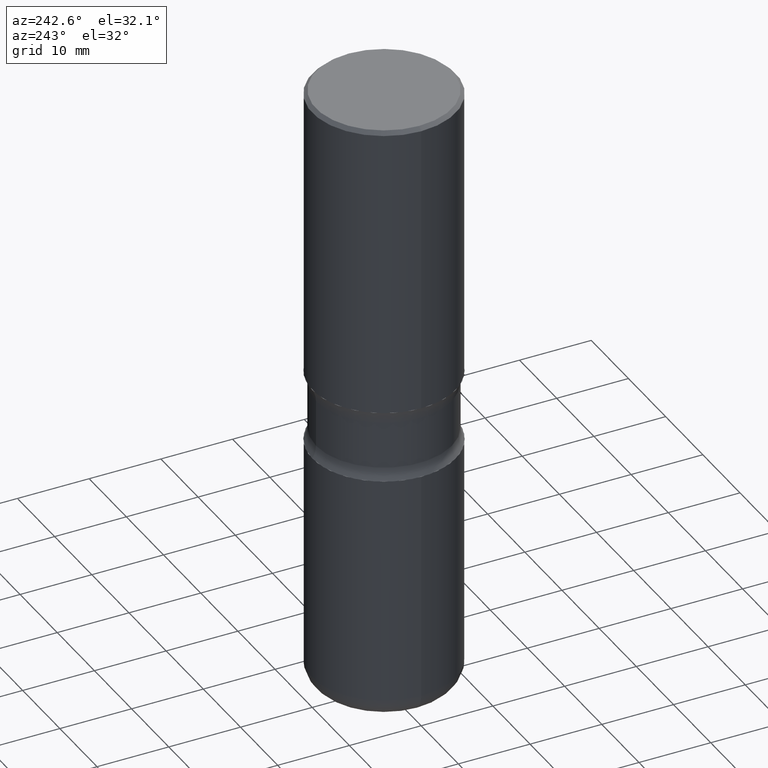
[diagram: clean part render]
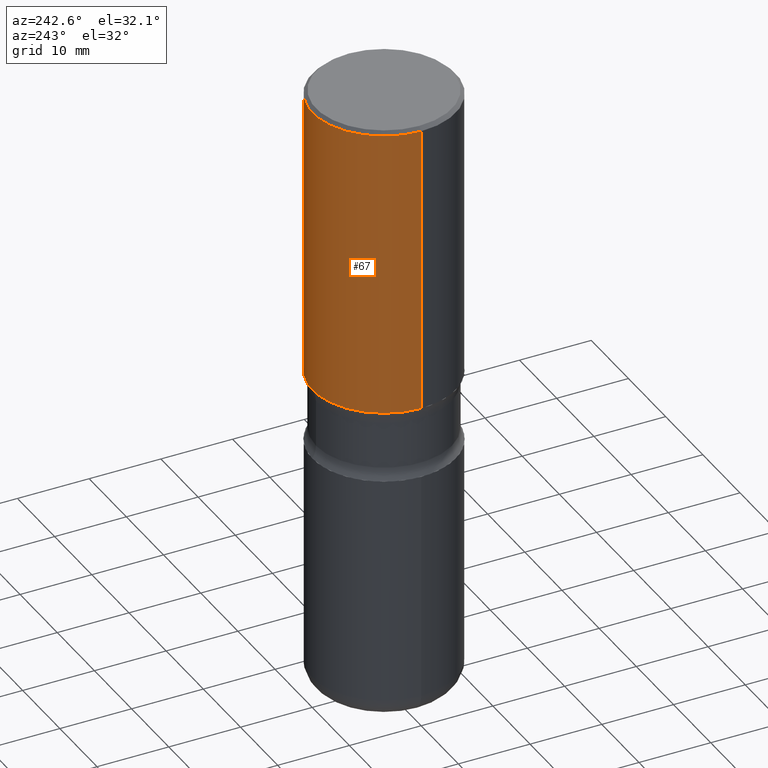
[diagram: same view with one face highlighted and labeled with its STEP entity id]
A machine part, auxiliary view. The second image highlights one B-rep face of the part: STEP entity #67.
In plain terms, the highlighted cylindrical surface (partial cylindrical patch) has radius 10 mm, axis along (-0, 0, 1).
Its self-contained STEP definition (entity closure, byte-faithful):
#34 = AXIS2_PLACEMENT_3D ( 'NONE', #539, #487, #156 ) ;
#40 = DIRECTION ( 'NONE',  ( -2.445468806185136877E-29, 3.491481338843145188E-15, 1.000000000000000000 ) ) ;
#41 = AXIS2_PLACEMENT_3D ( 'NONE', #140, #97, #267 ) ;
#44 = CARTESIAN_POINT ( 'NONE',  ( -0.3937000000000004940, 2.797406750687517942E-15, -1.936584745033358697E-29 ) ) ;
#46 = CARTESIAN_POINT ( 'NONE',  ( 0.3937000000000006605, -8.384792435231810596E-15, -1.614100000000000090 ) ) ;
#67 = ADVANCED_FACE ( 'NONE', ( #251 ), #292, .T. ) ;
#82 = DIRECTION ( 'NONE',  ( 1.000000000000000000, -6.982962677686266711E-15, 4.876176775795935793E-29 ) ) ;
#88 = EDGE_CURVE ( 'NONE', #108, #226, #411, .T. ) ;
#97 = DIRECTION ( 'NONE',  ( -2.445468806185136597E-29, 3.491481338843145583E-15, 1.000000000000000000 ) ) ;
#105 = VERTEX_POINT ( 'NONE', #224 ) ;
#108 = VERTEX_POINT ( 'NONE', #46 ) ;
#119 = VERTEX_POINT ( 'NONE', #174 ) ;
#140 = CARTESIAN_POINT ( 'NONE',  ( 4.890937612370306439E-31, -6.982962677686338448E-17, -0.02000000000000013572 ) ) ;
#141 = VECTOR ( 'NONE', #434, 39.37007874015748143 ) ;
#156 = DIRECTION ( 'NONE',  ( 1.000000000000000000, -6.982962677686266711E-15, 0.000000000000000000 ) ) ;
#159 = EDGE_CURVE ( 'NONE', #105, #119, #467, .T. ) ;
#164 = CARTESIAN_POINT ( 'NONE',  ( 0.3937000000000004940, -2.749192406205086766E-15, 1.919750796630862414E-29 ) ) ;
#174 = CARTESIAN_POINT ( 'NONE',  ( -0.3937000000000003830, 2.679362779428222679E-15, -0.02000000000000013572 ) ) ;
#224 = CARTESIAN_POINT ( 'NONE',  ( -0.3937000000000007160, -5.530807721427186863E-17, -1.614100000000000090 ) ) ;
#226 = VERTEX_POINT ( 'NONE', #560 ) ;
#229 = EDGE_CURVE ( 'NONE', #226, #119, #281, .T. ) ;
#233 = ORIENTED_EDGE ( 'NONE', *, *, #328, .T. ) ;
#240 = ORIENTED_EDGE ( 'NONE', *, *, #229, .F. ) ;
#251 = FACE_OUTER_BOUND ( 'NONE', #306, .T. ) ;
#267 = DIRECTION ( 'NONE',  ( 1.000000000000000000, -6.982962677686266711E-15, 0.000000000000000000 ) ) ;
#281 = CIRCLE ( 'NONE', #41, 0.3937000000000003830 ) ;
#292 = CYLINDRICAL_SURFACE ( 'NONE', #323, 0.3937000000000004940 ) ;
#306 = EDGE_LOOP ( 'NONE', ( #233, #482, #240, #461 ) ) ;
#323 = AXIS2_PLACEMENT_3D ( 'NONE', #502, #464, #82 ) ;
#328 = EDGE_CURVE ( 'NONE', #108, #105, #547, .T. ) ;
#411 = LINE ( 'NONE', #164, #488 ) ;
#434 = DIRECTION ( 'NONE',  ( -2.445468806185136877E-29, 3.491481338843145188E-15, 1.000000000000000000 ) ) ;
#461 = ORIENTED_EDGE ( 'NONE', *, *, #88, .F. ) ;
#464 = DIRECTION ( 'NONE',  ( -2.445468806185136597E-29, 3.491481338843145583E-15, 1.000000000000000000 ) ) ;
#467 = LINE ( 'NONE', #44, #141 ) ;
#482 = ORIENTED_EDGE ( 'NONE', *, *, #159, .T. ) ;
#487 = DIRECTION ( 'NONE',  ( -2.445468806185136597E-29, 3.491481338843145583E-15, 1.000000000000000000 ) ) ;
#488 = VECTOR ( 'NONE', #40, 39.37007874015748143 ) ;
#502 = CARTESIAN_POINT ( 'NONE',  ( 0.000000000000000000, 0.000000000000000000, 0.000000000000000000 ) ) ;
#539 = CARTESIAN_POINT ( 'NONE',  ( 3.947231200063429727E-29, -5.635600029026721857E-15, -1.614100000000000090 ) ) ;
#547 = CIRCLE ( 'NONE', #34, 0.3937000000000006605 ) ;
#560 = CARTESIAN_POINT ( 'NONE',  ( 0.3937000000000003830, -2.770807688499518100E-15, -0.02000000000000013572 ) ) ;